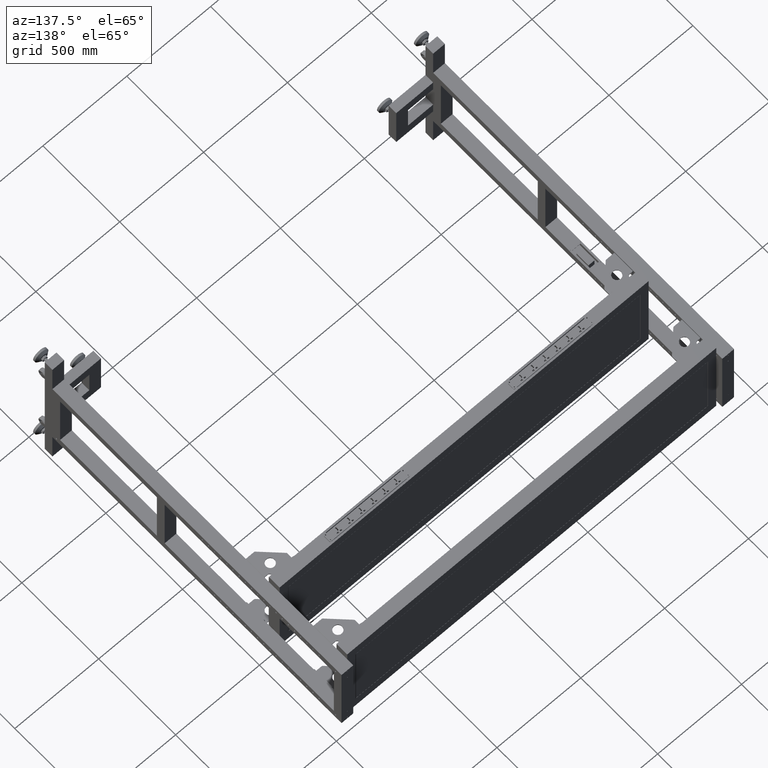
[diagram: clean part render]
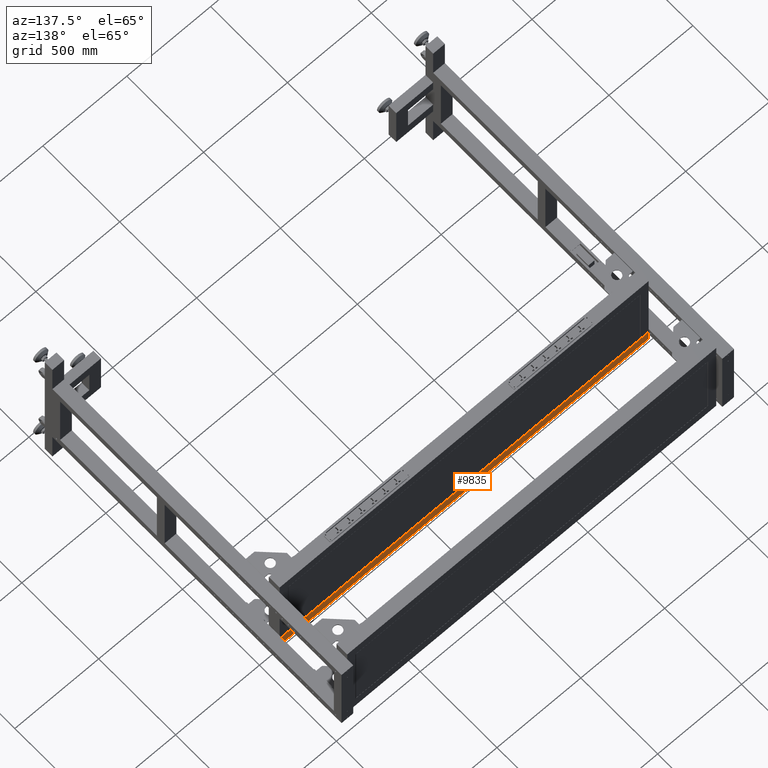
[diagram: same view with one face highlighted and labeled with its STEP entity id]
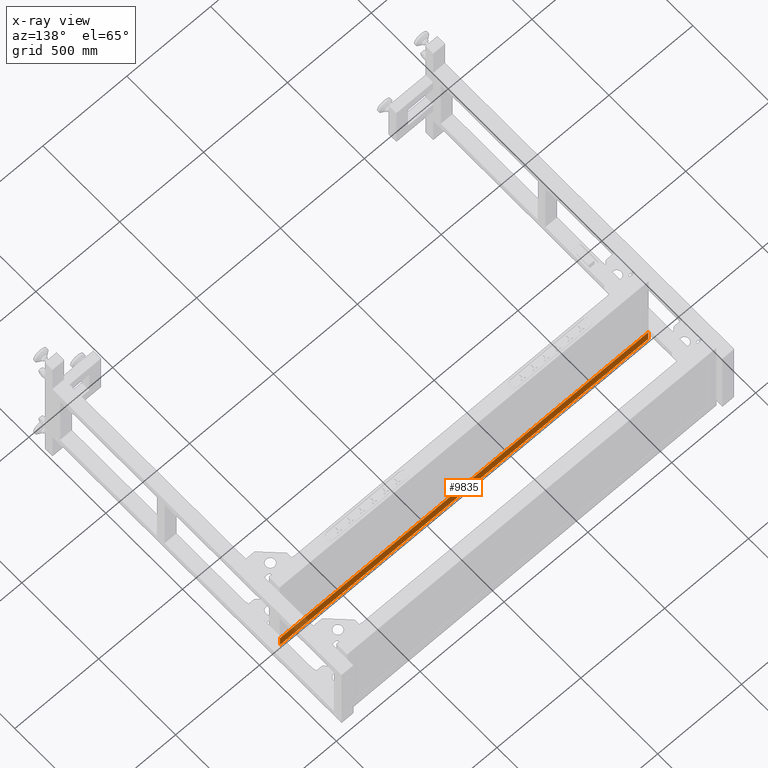
[diagram: x-ray of the same camera — body ghosted, the highlighted face saturated]
A machine part, auxiliary view. The second image highlights one B-rep face of the part: STEP entity #9835.
The next image is the same camera in x-ray: the body ghosted, the highlighted face saturated — about 4% of this face is hidden behind the body in this view.
In plain terms, the highlighted planar face has unit normal (0, -1, -0).
Its self-contained STEP definition (entity closure, byte-faithful):
#134 = EDGE_LOOP ( 'NONE', ( #75013, #60401, #2595, #46694 ) ) ;
#371 = CARTESIAN_POINT ( 'NONE',  ( 929.8275125628159685, 556.9410804020127443, -229.9999999999998863 ) ) ;
#1609 = PLANE ( 'NONE',  #57252 ) ;
#2595 = ORIENTED_EDGE ( 'NONE', *, *, #14690, .F. ) ;
#4543 = LINE ( 'NONE', #41827, #55038 ) ;
#4957 = VECTOR ( 'NONE', #40626, 1000.000000000000000 ) ;
#8139 = FACE_OUTER_BOUND ( 'NONE', #134, .T. ) ;
#9665 = VECTOR ( 'NONE', #78668, 1000.000000000000000 ) ;
#9835 = ADVANCED_FACE ( 'NONE', ( #8139 ), #1609, .F. ) ;
#10868 = EDGE_CURVE ( 'NONE', #73610, #53799, #4543, .T. ) ;
#13731 = VERTEX_POINT ( 'NONE', #44258 ) ;
#14482 = VERTEX_POINT ( 'NONE', #62780 ) ;
#14690 = EDGE_CURVE ( 'NONE', #53799, #14482, #21790, .T. ) ;
#15077 = CARTESIAN_POINT ( 'NONE',  ( -1266.172487437185964, 556.9410804020124033, -229.9999999999998863 ) ) ;
#19554 = EDGE_CURVE ( 'NONE', #13731, #14482, #61786, .T. ) ;
#21790 = LINE ( 'NONE', #34079, #9665 ) ;
#29484 = DIRECTION ( 'NONE',  ( 0.000000000000000000, 2.999999999999999839E-15, -1.000000000000000000 ) ) ;
#29500 = LINE ( 'NONE', #67186, #4957 ) ;
#31470 = VECTOR ( 'NONE', #68739, 1000.000000000000000 ) ;
#34079 = CARTESIAN_POINT ( 'NONE',  ( -1266.172487437185964, 556.9410804020126307, -299.9999999999999432 ) ) ;
#34096 = EDGE_CURVE ( 'NONE', #73610, #13731, #29500, .T. ) ;
#40626 = DIRECTION ( 'NONE',  ( 1.000000000000000000, 0.000000000000000000, -0.000000000000000000 ) ) ;
#41827 = CARTESIAN_POINT ( 'NONE',  ( -1266.172487437185964, 556.9410804020124033, -229.9999999999998863 ) ) ;
#44258 = CARTESIAN_POINT ( 'NONE',  ( 929.8275125628159685, 556.9410804020127443, -229.9999999999998863 ) ) ;
#46694 = ORIENTED_EDGE ( 'NONE', *, *, #10868, .F. ) ;
#51688 = CARTESIAN_POINT ( 'NONE',  ( -1266.172487437185964, 556.9410804020124033, -229.9999999999998863 ) ) ;
#51953 = DIRECTION ( 'NONE',  ( 0.000000000000000000, 2.999999999999999839E-15, -1.000000000000000000 ) ) ;
#53315 = CARTESIAN_POINT ( 'NONE',  ( -1266.172487437185964, 556.9410804020126307, -299.9999999999999432 ) ) ;
#53799 = VERTEX_POINT ( 'NONE', #53315 ) ;
#55038 = VECTOR ( 'NONE', #29484, 1000.000000000000000 ) ;
#57252 = AXIS2_PLACEMENT_3D ( 'NONE', #15077, #77703, #51953 ) ;
#60401 = ORIENTED_EDGE ( 'NONE', *, *, #19554, .T. ) ;
#61786 = LINE ( 'NONE', #371, #31470 ) ;
#62780 = CARTESIAN_POINT ( 'NONE',  ( 929.8275125628159685, 556.9410804020129717, -299.9999999999999432 ) ) ;
#67186 = CARTESIAN_POINT ( 'NONE',  ( -1266.172487437185964, 556.9410804020124033, -229.9999999999998863 ) ) ;
#68739 = DIRECTION ( 'NONE',  ( -7.960835153364788038E-31, 2.999999999999999839E-15, -1.000000000000000000 ) ) ;
#73610 = VERTEX_POINT ( 'NONE', #51688 ) ;
#75013 = ORIENTED_EDGE ( 'NONE', *, *, #34096, .T. ) ;
#77703 = DIRECTION ( 'NONE',  ( 0.000000000000000000, -1.000000000000000000, -2.999999999999999839E-15 ) ) ;
#78668 = DIRECTION ( 'NONE',  ( 1.000000000000000000, 0.000000000000000000, -0.000000000000000000 ) ) ;